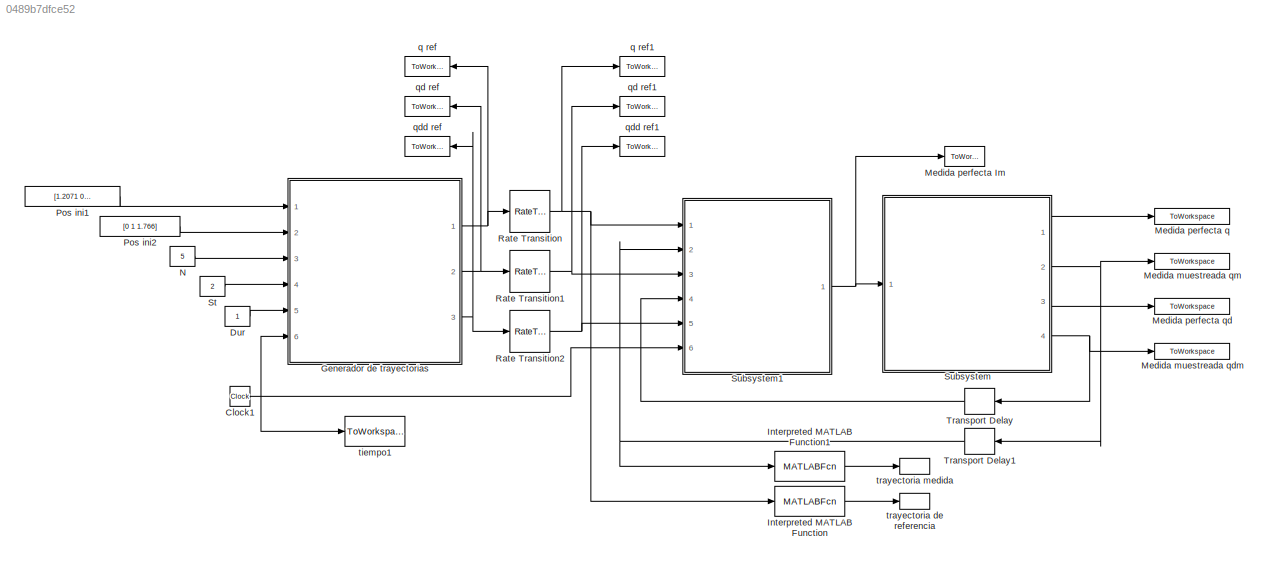
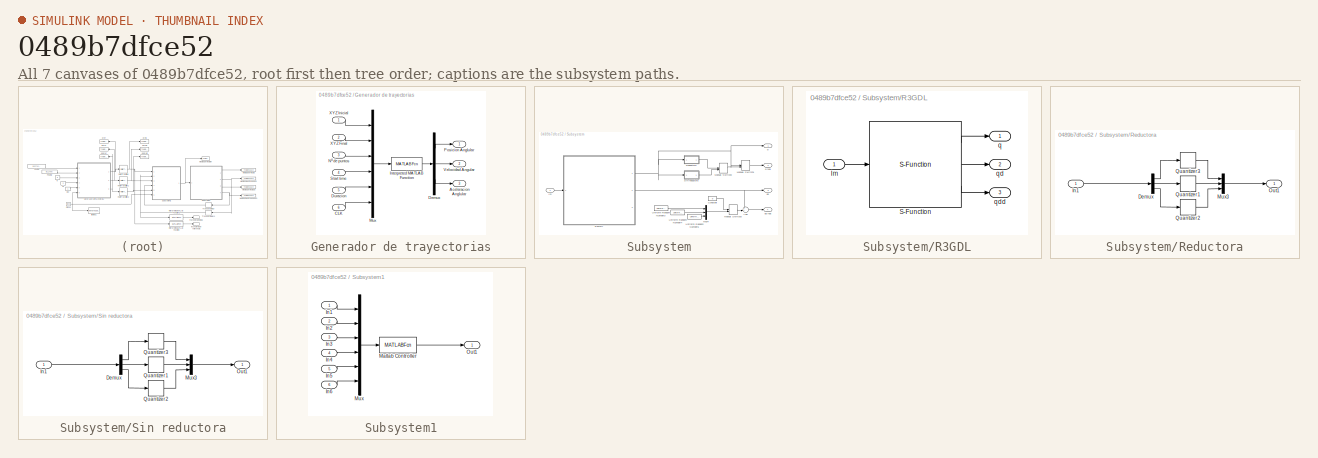
[diagram: thumbnail index - all 7 canvases of the model, root first then tree order]
MODEL slx_0489b7dfce52
KIND model
CONFIG AbsTol = auto
CONFIG EnableMultiTasking = off
CONFIG FixedStep = 0.001
CONFIG MaxStep = auto
CONFIG MinStep = auto
CONFIG RelTol = 1e-3
CONFIG SampleTimeConstraint = Unconstrained
CONFIG Solver = VariableStepAuto
CONFIG SolverName = VariableStepAuto
CONFIG StartTime = 0.0
CONFIG StopTime = fin
BLOCK [Clock] Clock1
BLOCK [Constant] Dur
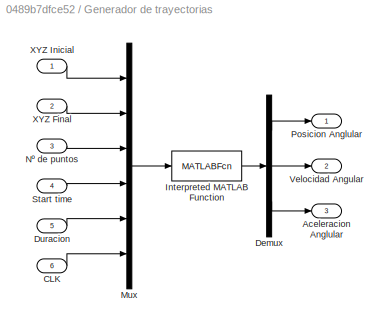
BLOCK [SubSystem] Generador de trayectorias
  Ports = [6, 3]
  RequestExecContextInheritance = off
BLOCK [Outport] Generador de trayectorias/ Posicion Anglular
  IconDisplay = Port number
  PortDimensions = 3
BLOCK [Outport] Generador de trayectorias/Aceleracion Anglular
  IconDisplay = Port number
  Port = 3
  PortDimensions = 3
BLOCK [Inport] Generador de trayectorias/CLK
  IconDisplay = Port number
  Port = 6
BLOCK [Demux] Generador de trayectorias/Demux
  DisplayOption = bar
  Outputs = 3
  Ports = [1, 3]
BLOCK [Inport] Generador de trayectorias/Duracion
  IconDisplay = Port number
  Port = 5
BLOCK [MATLABFcn] Generador de trayectorias/Interpreted MATLAB Function
  MATLABFcn = genTrayectoria5
  OutputDimensions = 9
  Ports = [1, 1]
BLOCK [Mux] Generador de trayectorias/Mux
  DisplayOption = bar
  Inputs = 6
  Ports = [6, 1]
BLOCK [Inport] Generador de trayectorias/Nº de puntos
  IconDisplay = Port number
  Port = 3
BLOCK [Inport] Generador de trayectorias/Start time
  IconDisplay = Port number
  Port = 4
BLOCK [Outport] Generador de trayectorias/Velocidad Angular
  IconDisplay = Port number
  Port = 2
  PortDimensions = 3
BLOCK [Inport] Generador de trayectorias/XYZ Final
  IconDisplay = Port number
  Port = 2
BLOCK [Inport] Generador de trayectorias/XYZ Inicial
  IconDisplay = Port number
BLOCK [MATLABFcn] Interpreted MATLAB Function
  MATLABFcn = mcd(u)
  Ports = [1, 1]
BLOCK [MATLABFcn] Interpreted MATLAB Function1
  MATLABFcn = mcd(u)
  Ports = [1, 1]
BLOCK [ToWorkspace] Medida muestreada qdm
  FixptAsFi = on
  MaxDataPoints = inf
  Ports = [1]
  SampleTime = Ts_control
  Save2DSignal = 3-D array (concatenate along third dimension)
  VariableName = qdm
BLOCK [ToWorkspace] Medida muestreada qm
  FixptAsFi = on
  MaxDataPoints = inf
  Ports = [1]
  SampleTime = Ts_control
  Save2DSignal = 3-D array (concatenate along third dimension)
  VariableName = qm
BLOCK [ToWorkspace] Medida perfecta Im
  MaxDataPoints = inf
  Ports = [1]
  VariableName = Im
BLOCK [ToWorkspace] Medida perfecta q
  MaxDataPoints = inf
  Ports = [1]
  SampleTime = -1
  VariableName = q
BLOCK [ToWorkspace] Medida perfecta qd
  MaxDataPoints = inf
  Ports = [1]
  SampleTime = -1
  VariableName = qd
BLOCK [Constant] N
  Value = 5
BLOCK [Constant] Pos ini1
  Value = [1.2071   0   1.6071]
BLOCK [Constant] Pos ini2
  Value = [0 1 1.766]
BLOCK [RateTransition] Rate Transition
  OutPortSampleTime = Ts_reference
  OutPortSampleTimeMultiple = ZOH
BLOCK [RateTransition] Rate Transition1
  OutPortSampleTime = Ts_reference
BLOCK [RateTransition] Rate Transition2
  OutPortSampleTime = Ts_reference
BLOCK [Constant] St
  Value = 2
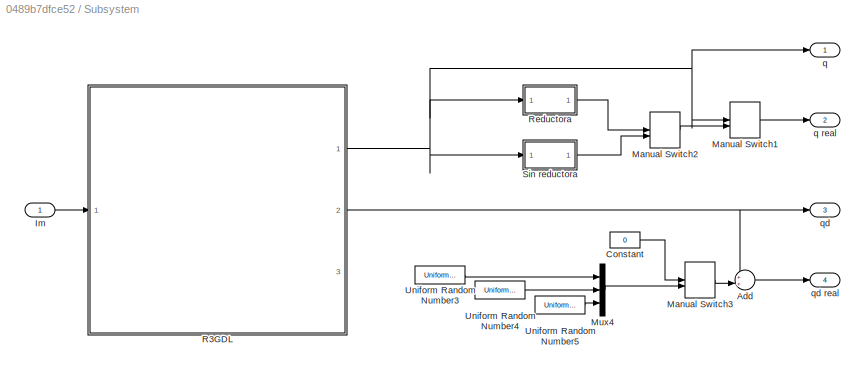
BLOCK [SubSystem] Subsystem
  Ports = [1, 4]
  RequestExecContextInheritance = off
BLOCK [Sum] Subsystem/Add
  IconShape = round
  InputSameDT = off
  Inputs = ++|
  OutDataTypeStr = Inherit: Inherit via internal rule
  Ports = [2, 1]
  SaturateOnIntegerOverflow = off
BLOCK [Constant] Subsystem/Constant
  Value = 0
BLOCK [Inport] Subsystem/Im
  IconDisplay = Port number
BLOCK [ManualSwitch] Subsystem/Manual Switch1
  CurrentSetting = 0
BLOCK [ManualSwitch] Subsystem/Manual Switch2
  CurrentSetting = 0
BLOCK [ManualSwitch] Subsystem/Manual Switch3
  CurrentSetting = 0
BLOCK [Mux] Subsystem/Mux4
  DisplayOption = bar
  Inputs = 3
  Ports = [3, 1]
BLOCK [SubSystem] Subsystem/R3GDL
  Ports = [1, 3]
  RequestExecContextInheritance = off
BLOCK [Inport] Subsystem/R3GDL/Im
  IconDisplay = Port number
BLOCK [S-Function] Subsystem/R3GDL/S-Function
  EnableBusSupport = off
  FunctionName = R3GDL_RRR
  Parameters = [q1_ini; q2_ini; q3_ini]; [Bl_q1; Bl_q2; Bl_q3]; AccionamientoDirecto; NGrupo
  Ports = [1, 3]
  SFcnIsStateOwnerBlock = off
  SFunctionDeploymentMode = off
BLOCK [Outport] Subsystem/R3GDL/q
  IconDisplay = Port number
BLOCK [Outport] Subsystem/R3GDL/qd
  IconDisplay = Port number
  Port = 2
BLOCK [Outport] Subsystem/R3GDL/qdd
  IconDisplay = Port number
  Port = 3
BLOCK [SubSystem] Subsystem/Reductora
  Ports = [1, 1]
  RequestExecContextInheritance = off
BLOCK [Demux] Subsystem/Reductora/Demux
  DisplayOption = bar
  Outputs = 3
  Ports = [1, 3]
BLOCK [Inport] Subsystem/Reductora/In1
  IconDisplay = Port number
BLOCK [Mux] Subsystem/Reductora/Mux3
  DisplayOption = bar
  Inputs = 3
  Ports = [3, 1]
BLOCK [Outport] Subsystem/Reductora/Out1
  IconDisplay = Port number
BLOCK [Quantizer] Subsystem/Reductora/Quantizer1
  QuantizationInterval = 2*pi/1024/30
BLOCK [Quantizer] Subsystem/Reductora/Quantizer2
  QuantizationInterval = 2*pi/1024/15
BLOCK [Quantizer] Subsystem/Reductora/Quantizer3
  QuantizationInterval = 2*pi/1024/50
BLOCK [SubSystem] Subsystem/Sin reductora
  Ports = [1, 1]
  RequestExecContextInheritance = off
BLOCK [Demux] Subsystem/Sin reductora/Demux
  DisplayOption = bar
  Outputs = 3
  Ports = [1, 3]
BLOCK [Inport] Subsystem/Sin reductora/In1
  IconDisplay = Port number
BLOCK [Mux] Subsystem/Sin reductora/Mux3
  DisplayOption = bar
  Inputs = 3
  Ports = [3, 1]
BLOCK [Outport] Subsystem/Sin reductora/Out1
  IconDisplay = Port number
BLOCK [Quantizer] Subsystem/Sin reductora/Quantizer1
  QuantizationInterval = 2*pi/1024
BLOCK [Quantizer] Subsystem/Sin reductora/Quantizer2
  QuantizationInterval = 2*pi/1024
BLOCK [Quantizer] Subsystem/Sin reductora/Quantizer3
  QuantizationInterval = 2*pi/1024
BLOCK [UniformRandomNumber] Subsystem/Uniform Random Number3
  Maximum = (1500*2*pi/60)*(0.01/50)
  Minimum = -(1500*2*pi/60)*(0.01/50)
  SampleTime = 0.001
BLOCK [UniformRandomNumber] Subsystem/Uniform Random Number4
  Maximum = (1500*2*pi/60)*(0.01/30)
  Minimum = -(1500*2*pi/60)*(0.01/30)
  SampleTime = 0.001
BLOCK [UniformRandomNumber] Subsystem/Uniform Random Number5
  Maximum = (1500*2*pi/60)*(0.01/15)
  Minimum = -(1500*2*pi/60)*(0.01/15)
  SampleTime = 0.001
BLOCK [Outport] Subsystem/q
  IconDisplay = Port number
BLOCK [Outport] Subsystem/q real
  IconDisplay = Port number
  Port = 2
BLOCK [Outport] Subsystem/qd
  IconDisplay = Port number
  Port = 3
BLOCK [Outport] Subsystem/qd real
  IconDisplay = Port number
  Port = 4
BLOCK [SubSystem] Subsystem1
  Ports = [6, 1]
  RequestExecContextInheritance = off
  SystemSampleTime = Ts_control
  TreatAsAtomicUnit = on
BLOCK [Inport] Subsystem1/In1
  IconDisplay = Port number
BLOCK [Inport] Subsystem1/In2
  IconDisplay = Port number
  Port = 2
BLOCK [Inport] Subsystem1/In3
  IconDisplay = Port number
  Port = 3
BLOCK [Inport] Subsystem1/In4
  IconDisplay = Port number
  Port = 4
BLOCK [Inport] Subsystem1/In5
  IconDisplay = Port number
  Port = 5
BLOCK [Inport] Subsystem1/In6
  IconDisplay = Port number
  Port = 6
BLOCK [MATLABFcn] Subsystem1/Matlab Controller 
  MATLABFcn = Controller
  Ports = [1, 1]
BLOCK [Mux] Subsystem1/Mux
  DisplayOption = bar
  Inputs = 6
  Ports = [6, 1]
BLOCK [Outport] Subsystem1/Out1
  IconDisplay = Port number
BLOCK [TransportDelay] Transport Delay
  DelayTime = 1e-18
  Ports = [1, 1]
BLOCK [TransportDelay] Transport Delay1
  DelayTime = 1e-18
  InitialOutput = mci([1.2071   0   1.6071],1)
  Ports = [1, 1]
BLOCK [ToWorkspace] q ref
  MaxDataPoints = inf
  Ports = [1]
  SampleTime = -1
  VariableName = qr
BLOCK [ToWorkspace] q ref1
  MaxDataPoints = inf
  Ports = [1]
  VariableName = qrs
BLOCK [ToWorkspace] qd ref
  MaxDataPoints = inf
  Ports = [1]
  SampleTime = -1
  VariableName = qdr
BLOCK [ToWorkspace] qd ref1
  MaxDataPoints = inf
  Ports = [1]
  VariableName = qdrs
BLOCK [ToWorkspace] qdd ref
  MaxDataPoints = inf
  Ports = [1]
  SampleTime = -1
  VariableName = qddr
BLOCK [ToWorkspace] qdd ref1
  MaxDataPoints = inf
  Ports = [1]
  VariableName = qddrs
BLOCK [ToWorkspace] tiempo1
  MaxDataPoints = inf
  Ports = [1]
  VariableName = t
BLOCK [ToWorkspace] trayectoria de referencia
  MaxDataPoints = inf
  Ports = [1]
  VariableName = xyzr
BLOCK [ToWorkspace] trayectoria medida
  MaxDataPoints = inf
  Ports = [1]
  VariableName = xyz
NET Clock1:1 -> Generador de trayectorias:6, Subsystem1:6, tiempo1:1
LINE Dur:1 -> Generador de trayectorias:5
LINE Generador de trayectorias/CLK:1 -> Generador de trayectorias/Mux:6
LINE Generador de trayectorias/Demux:1 -> Generador de trayectorias/ Posicion Anglular:1
LINE Generador de trayectorias/Demux:2 -> Generador de trayectorias/Velocidad Angular:1
LINE Generador de trayectorias/Demux:3 -> Generador de trayectorias/Aceleracion Anglular:1
LINE Generador de trayectorias/Duracion:1 -> Generador de trayectorias/Mux:5
LINE Generador de trayectorias/Interpreted MATLAB Function:1 -> Generador de trayectorias/Demux:1
LINE Generador de trayectorias/Mux:1 -> Generador de trayectorias/Interpreted MATLAB Function:1
LINE Generador de trayectorias/Nº de puntos:1 -> Generador de trayectorias/Mux:3
LINE Generador de trayectorias/Start time:1 -> Generador de trayectorias/Mux:4
LINE Generador de trayectorias/XYZ Final:1 -> Generador de trayectorias/Mux:2
LINE Generador de trayectorias/XYZ Inicial:1 -> Generador de trayectorias/Mux:1
NET Generador de trayectorias:1 -> Rate Transition:1, q ref:1
NET Generador de trayectorias:2 -> Rate Transition1:1, qd ref:1
NET Generador de trayectorias:3 -> Rate Transition2:1, qdd ref:1
LINE Interpreted MATLAB Function1:1 -> trayectoria medida:1
LINE Interpreted MATLAB Function:1 -> trayectoria de referencia:1
LINE N:1 -> Generador de trayectorias:3
LINE Pos ini1:1 -> Generador de trayectorias:1
LINE Pos ini2:1 -> Generador de trayectorias:2
NET Rate Transition1:1 -> Subsystem1:3, qd ref1:1
NET Rate Transition2:1 -> Subsystem1:5, qdd ref1:1
NET Rate Transition:1 -> Interpreted MATLAB Function:1, Subsystem1:1, q ref1:1
LINE St:1 -> Generador de trayectorias:4
LINE Subsystem/Add:1 -> Subsystem/qd real:1
LINE Subsystem/Constant:1 -> Subsystem/Manual Switch3:1
LINE Subsystem/Im:1 -> Subsystem/R3GDL:1
LINE Subsystem/Manual Switch1:1 -> Subsystem/q real:1
LINE Subsystem/Manual Switch2:1 -> Subsystem/Manual Switch1:2
LINE Subsystem/Manual Switch3:1 -> Subsystem/Add:2
LINE Subsystem/Mux4:1 -> Subsystem/Manual Switch3:2
LINE Subsystem/R3GDL/Im:1 -> Subsystem/R3GDL/S-Function:1
LINE Subsystem/R3GDL/S-Function:1 -> Subsystem/R3GDL/q:1
LINE Subsystem/R3GDL/S-Function:2 -> Subsystem/R3GDL/qd:1
LINE Subsystem/R3GDL/S-Function:3 -> Subsystem/R3GDL/qdd:1
NET Subsystem/R3GDL:1 -> Subsystem/Manual Switch1:1, Subsystem/Reductora:1, Subsystem/Sin reductora:1, Subsystem/q:1
NET Subsystem/R3GDL:2 -> Subsystem/Add:1, Subsystem/qd:1
LINE Subsystem/Reductora/Demux:1 -> Subsystem/Reductora/Quantizer3:1
LINE Subsystem/Reductora/Demux:2 -> Subsystem/Reductora/Quantizer1:1
LINE Subsystem/Reductora/Demux:3 -> Subsystem/Reductora/Quantizer2:1
LINE Subsystem/Reductora/In1:1 -> Subsystem/Reductora/Demux:1
LINE Subsystem/Reductora/Mux3:1 -> Subsystem/Reductora/Out1:1
LINE Subsystem/Reductora/Quantizer1:1 -> Subsystem/Reductora/Mux3:2
LINE Subsystem/Reductora/Quantizer2:1 -> Subsystem/Reductora/Mux3:3
LINE Subsystem/Reductora/Quantizer3:1 -> Subsystem/Reductora/Mux3:1
LINE Subsystem/Reductora:1 -> Subsystem/Manual Switch2:1
LINE Subsystem/Sin reductora/Demux:1 -> Subsystem/Sin reductora/Quantizer3:1
LINE Subsystem/Sin reductora/Demux:2 -> Subsystem/Sin reductora/Quantizer1:1
LINE Subsystem/Sin reductora/Demux:3 -> Subsystem/Sin reductora/Quantizer2:1
LINE Subsystem/Sin reductora/In1:1 -> Subsystem/Sin reductora/Demux:1
LINE Subsystem/Sin reductora/Mux3:1 -> Subsystem/Sin reductora/Out1:1
LINE Subsystem/Sin reductora/Quantizer1:1 -> Subsystem/Sin reductora/Mux3:2
LINE Subsystem/Sin reductora/Quantizer2:1 -> Subsystem/Sin reductora/Mux3:3
LINE Subsystem/Sin reductora/Quantizer3:1 -> Subsystem/Sin reductora/Mux3:1
LINE Subsystem/Sin reductora:1 -> Subsystem/Manual Switch2:2
LINE Subsystem/Uniform Random Number3:1 -> Subsystem/Mux4:1
LINE Subsystem/Uniform Random Number4:1 -> Subsystem/Mux4:2
LINE Subsystem/Uniform Random Number5:1 -> Subsystem/Mux4:3
LINE Subsystem1/In1:1 -> Subsystem1/Mux:1
LINE Subsystem1/In2:1 -> Subsystem1/Mux:2
LINE Subsystem1/In3:1 -> Subsystem1/Mux:3
LINE Subsystem1/In4:1 -> Subsystem1/Mux:4
LINE Subsystem1/In5:1 -> Subsystem1/Mux:5
LINE Subsystem1/In6:1 -> Subsystem1/Mux:6
LINE Subsystem1/Matlab Controller :1 -> Subsystem1/Out1:1
LINE Subsystem1/Mux:1 -> Subsystem1/Matlab Controller :1
NET Subsystem1:1 -> Medida perfecta Im:1, Subsystem:1
LINE Subsystem:1 -> Medida perfecta q:1
NET Subsystem:2 -> Medida muestreada qm:1, Transport Delay1:1
LINE Subsystem:3 -> Medida perfecta qd:1
NET Subsystem:4 -> Medida muestreada qdm:1, Transport Delay:1
NET Transport Delay1:1 -> Interpreted MATLAB Function1:1, Subsystem1:2
LINE Transport Delay:1 -> Subsystem1:4
note: NET lines group one-source signal fan-out (src -> all destinations, sorted); 1:1 wires keep LINE
